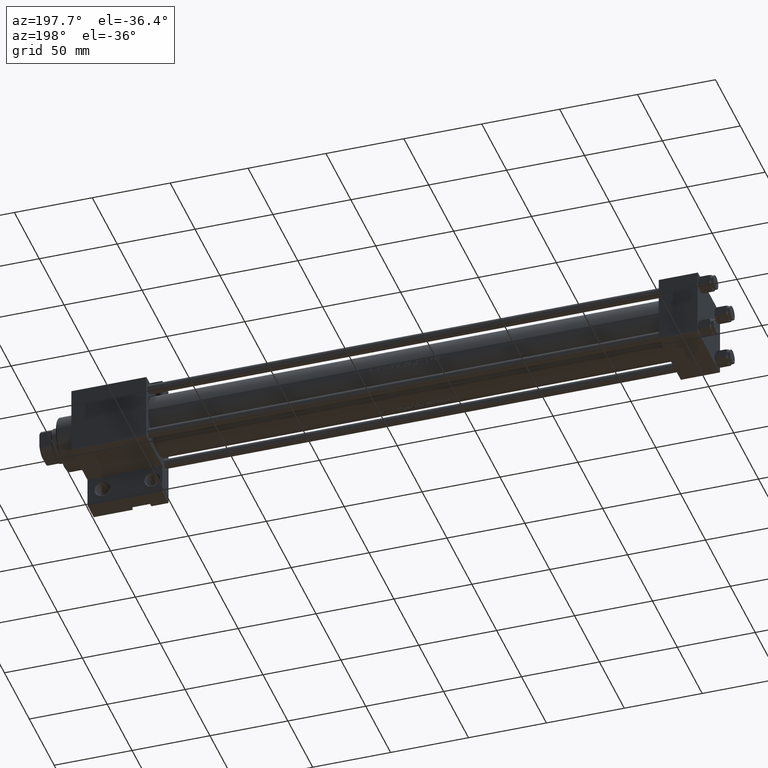
[diagram: clean part render]
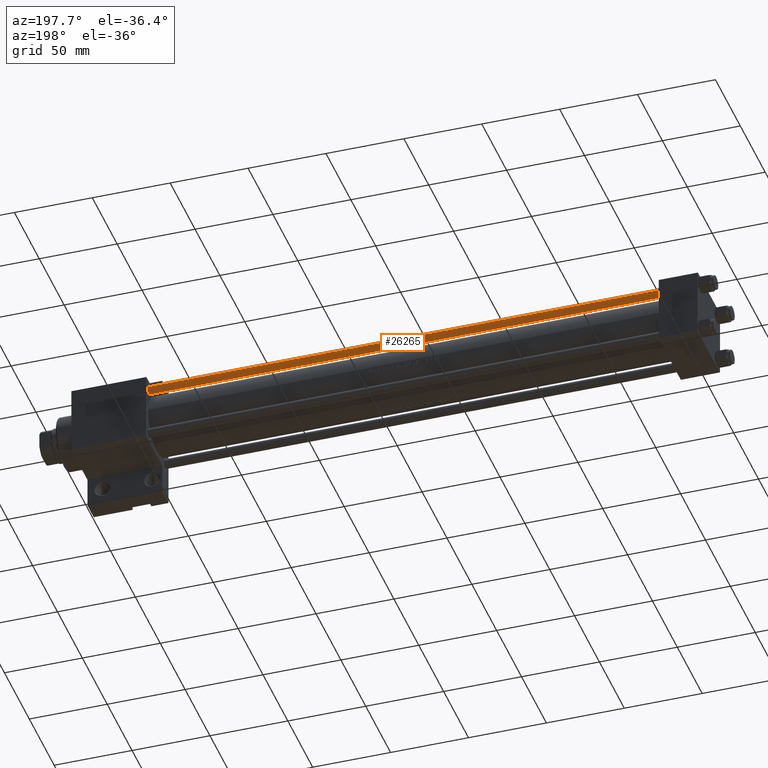
[diagram: same view with one face highlighted and labeled with its STEP entity id]
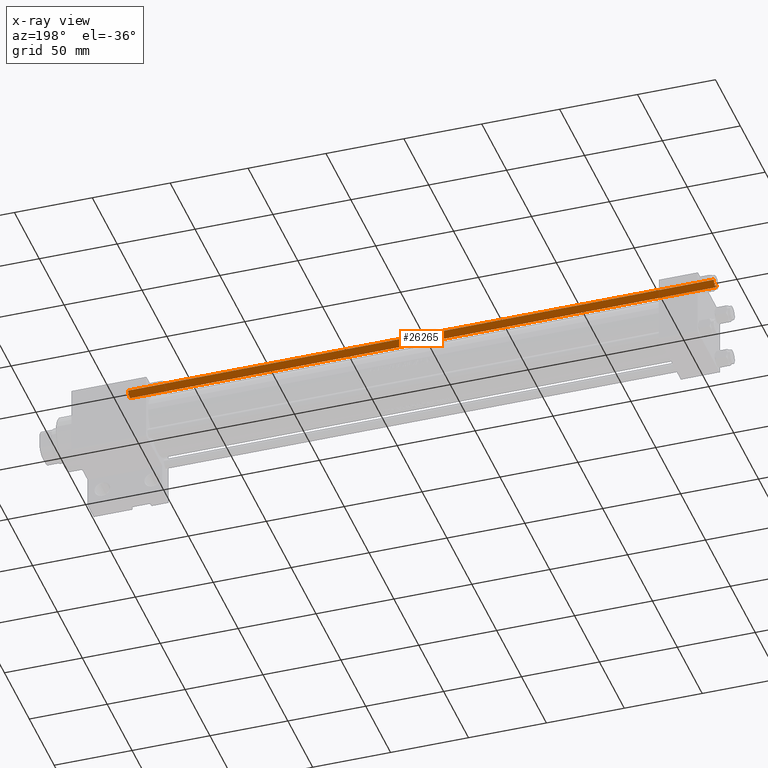
[diagram: x-ray of the same camera — body ghosted, the highlighted face saturated]
A machine part, auxiliary view. The second image highlights one B-rep face of the part: STEP entity #26265.
The next image is the same camera in x-ray: the body ghosted, the highlighted face saturated — about 0% of this face is hidden behind the body in this view.
In plain terms, the highlighted cylindrical surface (edge-blend (fillet) strip) has radius 3 mm, axis along (1, -0, 0).
Its self-contained STEP definition (entity closure, byte-faithful):
#1978 = DIRECTION ( 'NONE',  ( -1.000000000000000000, 0.000000000000000000, 0.000000000000000000 ) ) ;
#3904 = VECTOR ( 'NONE', #25449, 1000.000000000000000 ) ;
#5276 = DIRECTION ( 'NONE',  ( -0.000000000000000000, -0.000000000000000000, 1.000000000000000000 ) ) ;
#6675 = DIRECTION ( 'NONE',  ( 0.000000000000000000, 0.000000000000000000, -1.000000000000000000 ) ) ;
#7434 = ORIENTED_EDGE ( 'NONE', *, *, #37338, .F. ) ;
#8957 = AXIS2_PLACEMENT_3D ( 'NONE', #35043, #21043, #1978 ) ;
#9209 = EDGE_LOOP ( 'NONE', ( #37325, #17169, #40512, #7434 ) ) ;
#9944 = CARTESIAN_POINT ( 'NONE',  ( -3.000000000000000444, 0.000000000000000000, 376.5000000000000568 ) ) ;
#10533 = DIRECTION ( 'NONE',  ( 1.000000000000000000, 0.000000000000000000, 0.000000000000000000 ) ) ;
#11940 = CARTESIAN_POINT ( 'NONE',  ( 3.000000000000000444, 3.673940397442060361E-16, 0.5000000000000559552 ) ) ;
#15056 = CARTESIAN_POINT ( 'NONE',  ( 3.000000000000000444, 3.673940397442060361E-16, 376.5000000000000568 ) ) ;
#17169 = ORIENTED_EDGE ( 'NONE', *, *, #47424, .T. ) ;
#17366 = DIRECTION ( 'NONE',  ( -0.000000000000000000, -0.000000000000000000, -1.000000000000000000 ) ) ;
#21043 = DIRECTION ( 'NONE',  ( -0.000000000000000000, -0.000000000000000000, -1.000000000000000000 ) ) ;
#21835 = LINE ( 'NONE', #35181, #3904 ) ;
#22347 = AXIS2_PLACEMENT_3D ( 'NONE', #43813, #6675, #10533 ) ;
#24688 = CIRCLE ( 'NONE', #22347, 3.000000000000000444 ) ;
#25449 = DIRECTION ( 'NONE',  ( -0.000000000000000000, -0.000000000000000000, -1.000000000000000000 ) ) ;
#25481 = CIRCLE ( 'NONE', #43952, 3.000000000000000444 ) ;
#26006 = VERTEX_POINT ( 'NONE', #15056 ) ;
#26265 = ADVANCED_FACE ( 'NONE', ( #38643 ), #35504, .T. ) ;
#28456 = LINE ( 'NONE', #35928, #36326 ) ;
#30856 = VERTEX_POINT ( 'NONE', #9944 ) ;
#34086 = VERTEX_POINT ( 'NONE', #11940 ) ;
#35043 = CARTESIAN_POINT ( 'NONE',  ( 0.000000000000000000, 0.000000000000000000, 377.0000000000000000 ) ) ;
#35181 = CARTESIAN_POINT ( 'NONE',  ( -3.000000000000000444, 0.000000000000000000, 377.0000000000000000 ) ) ;
#35504 = CYLINDRICAL_SURFACE ( 'NONE', #8957, 3.000000000000000444 ) ;
#35928 = CARTESIAN_POINT ( 'NONE',  ( 3.000000000000000444, 3.673940397442060361E-16, 377.0000000000000000 ) ) ;
#36120 = VERTEX_POINT ( 'NONE', #38778 ) ;
#36140 = EDGE_CURVE ( 'NONE', #30856, #26006, #24688, .T. ) ;
#36326 = VECTOR ( 'NONE', #17366, 1000.000000000000000 ) ;
#37325 = ORIENTED_EDGE ( 'NONE', *, *, #36140, .T. ) ;
#37338 = EDGE_CURVE ( 'NONE', #30856, #36120, #21835, .T. ) ;
#38054 = EDGE_CURVE ( 'NONE', #34086, #36120, #25481, .T. ) ;
#38084 = DIRECTION ( 'NONE',  ( 1.000000000000000000, 0.000000000000000000, 0.000000000000000000 ) ) ;
#38643 = FACE_OUTER_BOUND ( 'NONE', #9209, .T. ) ;
#38778 = CARTESIAN_POINT ( 'NONE',  ( -3.000000000000000444, 0.000000000000000000, 0.5000000000000559552 ) ) ;
#40512 = ORIENTED_EDGE ( 'NONE', *, *, #38054, .T. ) ;
#41456 = CARTESIAN_POINT ( 'NONE',  ( 0.000000000000000000, 0.000000000000000000, 0.5000000000000559552 ) ) ;
#43813 = CARTESIAN_POINT ( 'NONE',  ( 0.000000000000000000, 0.000000000000000000, 376.5000000000000568 ) ) ;
#43952 = AXIS2_PLACEMENT_3D ( 'NONE', #41456, #5276, #38084 ) ;
#47424 = EDGE_CURVE ( 'NONE', #26006, #34086, #28456, .T. ) ;